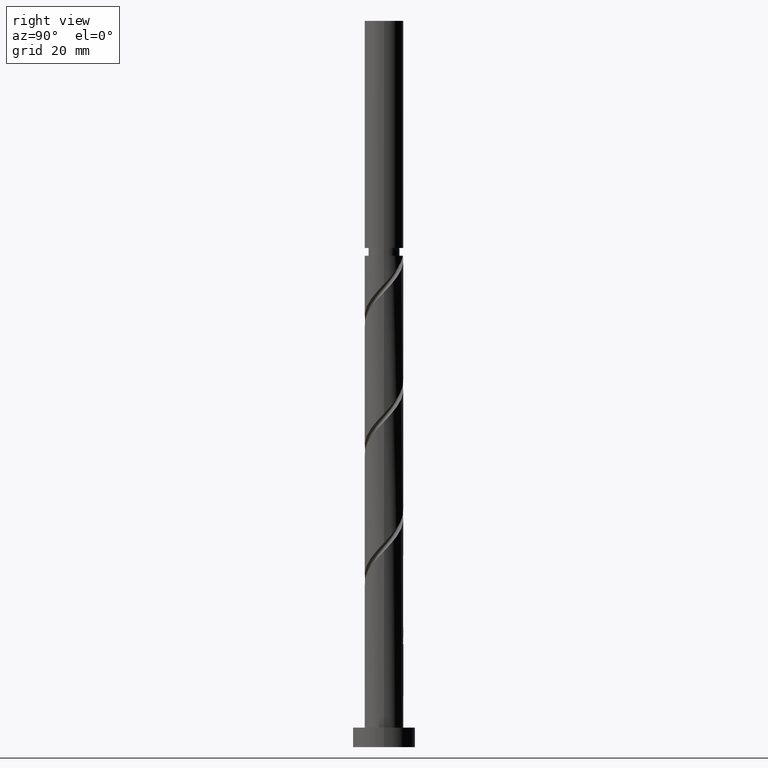
[diagram: clean part render]
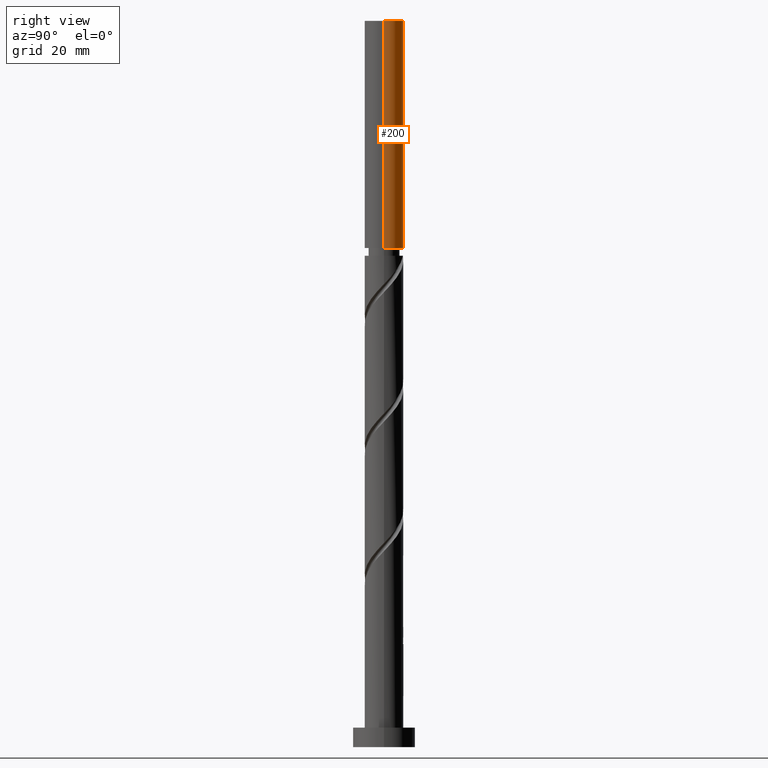
[diagram: same view with one face highlighted and labeled with its STEP entity id]
A machine part, right view. The second image highlights one B-rep face of the part: STEP entity #200.
In plain terms, the highlighted cylindrical surface (edge-blend (fillet) strip) has radius 5 mm, axis along (-0, -0, -1).
Its self-contained STEP definition (entity closure, byte-faithful):
#20 = ORIENTED_EDGE ( 'NONE', *, *, #882, .T. ) ;
#45 = CIRCLE ( 'NONE', #867, 4.999999999999997335 ) ;
#77 = AXIS2_PLACEMENT_3D ( 'NONE', #724, #1628, #587 ) ;
#195 = CARTESIAN_POINT ( 'NONE',  ( -4.999999999999997335, 0.000000000000000000, 128.5313562734664004 ) ) ;
#200 = ADVANCED_FACE ( 'NONE', ( #667 ), #946, .T. ) ;
#213 = CARTESIAN_POINT ( 'NONE',  ( 5.000000000000000000, 6.123233995736766282E-16, 187.0000000000000000 ) ) ;
#231 = CARTESIAN_POINT ( 'NONE',  ( -5.000000000000000000, 0.000000000000000000, 187.0000000000000000 ) ) ;
#273 = DIRECTION ( 'NONE',  ( -1.000000000000000000, 0.000000000000000000, 0.000000000000000000 ) ) ;
#276 = VECTOR ( 'NONE', #757, 1000.000000000000000 ) ;
#282 = DIRECTION ( 'NONE',  ( -0.000000000000000000, -0.000000000000000000, -1.000000000000000000 ) ) ;
#349 = VERTEX_POINT ( 'NONE', #231 ) ;
#396 = VERTEX_POINT ( 'NONE', #1447 ) ;
#420 = VERTEX_POINT ( 'NONE', #195 ) ;
#453 = CARTESIAN_POINT ( 'NONE',  ( 0.000000000000000000, 0.000000000000000000, 128.5313562734664004 ) ) ;
#481 = DIRECTION ( 'NONE',  ( -0.000000000000000000, -0.000000000000000000, -1.000000000000000000 ) ) ;
#489 = DIRECTION ( 'NONE',  ( -0.000000000000000000, -0.000000000000000000, -1.000000000000000000 ) ) ;
#587 = DIRECTION ( 'NONE',  ( 1.000000000000000000, 0.000000000000000000, 0.000000000000000000 ) ) ;
#594 = EDGE_CURVE ( 'NONE', #349, #420, #1678, .T. ) ;
#637 = EDGE_CURVE ( 'NONE', #420, #396, #45, .T. ) ;
#652 = CIRCLE ( 'NONE', #77, 5.000000000000000000 ) ;
#667 = FACE_OUTER_BOUND ( 'NONE', #964, .T. ) ;
#724 = CARTESIAN_POINT ( 'NONE',  ( 0.000000000000000000, 0.000000000000000000, 187.0000000000000000 ) ) ;
#757 = DIRECTION ( 'NONE',  ( -0.000000000000000000, -0.000000000000000000, -1.000000000000000000 ) ) ;
#867 = AXIS2_PLACEMENT_3D ( 'NONE', #453, #481, #878 ) ;
#878 = DIRECTION ( 'NONE',  ( -1.000000000000000000, 0.000000000000000000, 0.000000000000000000 ) ) ;
#882 = EDGE_CURVE ( 'NONE', #1356, #396, #1033, .T. ) ;
#885 = CARTESIAN_POINT ( 'NONE',  ( -5.000000000000000000, 0.000000000000000000, 187.0000000000000000 ) ) ;
#922 = ORIENTED_EDGE ( 'NONE', *, *, #637, .F. ) ;
#946 = CYLINDRICAL_SURFACE ( 'NONE', #1615, 5.000000000000000000 ) ;
#959 = ORIENTED_EDGE ( 'NONE', *, *, #1530, .F. ) ;
#964 = EDGE_LOOP ( 'NONE', ( #959, #20, #922, #1341 ) ) ;
#1033 = LINE ( 'NONE', #213, #276 ) ;
#1223 = CARTESIAN_POINT ( 'NONE',  ( 0.000000000000000000, 0.000000000000000000, 187.0000000000000000 ) ) ;
#1341 = ORIENTED_EDGE ( 'NONE', *, *, #594, .F. ) ;
#1356 = VERTEX_POINT ( 'NONE', #1738 ) ;
#1447 = CARTESIAN_POINT ( 'NONE',  ( 4.999999999999997335, 6.123233995736764310E-16, 128.5313562734664004 ) ) ;
#1530 = EDGE_CURVE ( 'NONE', #1356, #349, #652, .T. ) ;
#1615 = AXIS2_PLACEMENT_3D ( 'NONE', #1223, #282, #273 ) ;
#1620 = VECTOR ( 'NONE', #489, 1000.000000000000000 ) ;
#1628 = DIRECTION ( 'NONE',  ( 0.000000000000000000, 0.000000000000000000, 1.000000000000000000 ) ) ;
#1678 = LINE ( 'NONE', #885, #1620 ) ;
#1738 = CARTESIAN_POINT ( 'NONE',  ( 5.000000000000000000, 6.123233995736766282E-16, 187.0000000000000000 ) ) ;